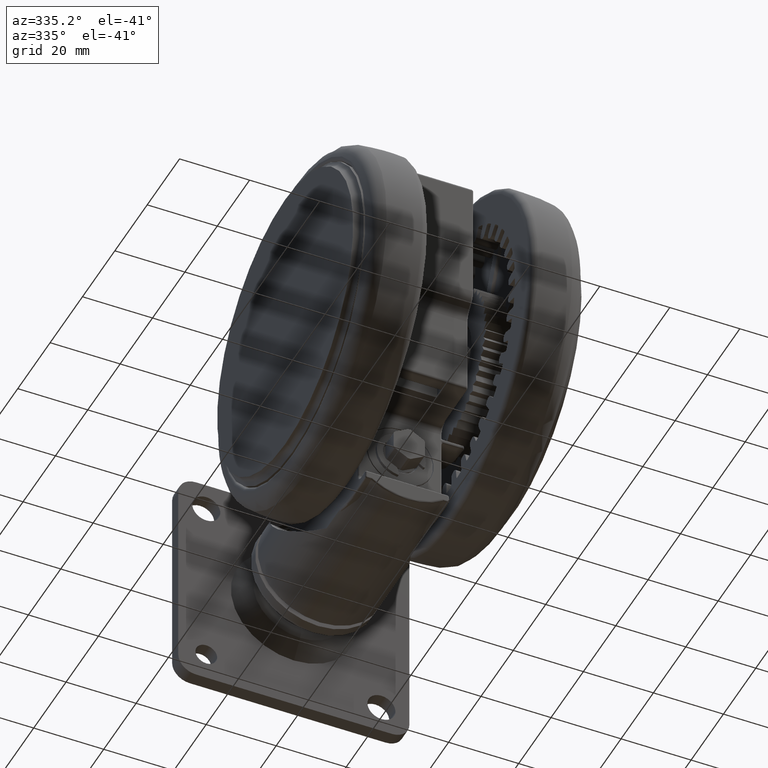
[diagram: clean part render]
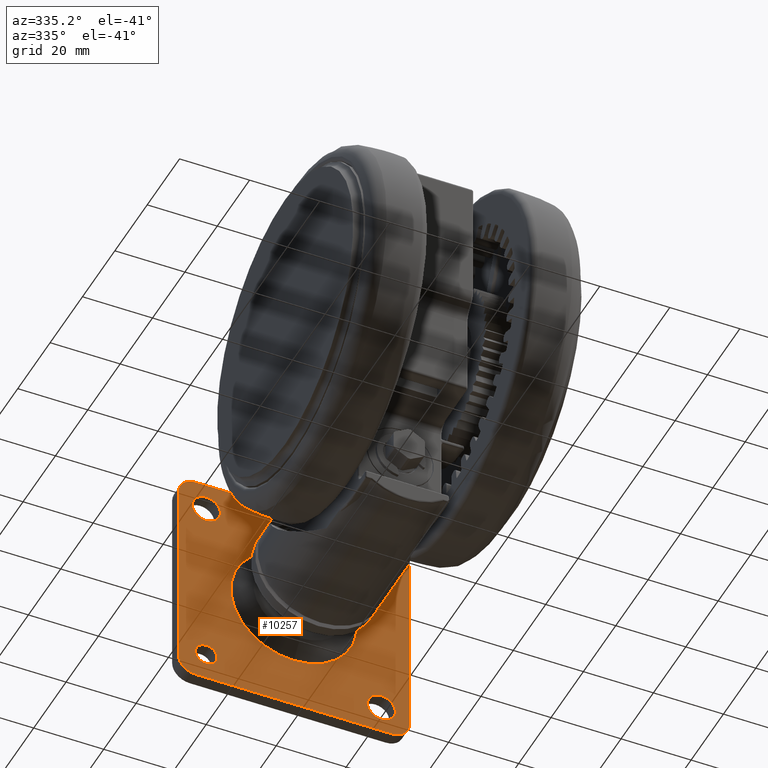
[diagram: same view with one face highlighted and labeled with its STEP entity id]
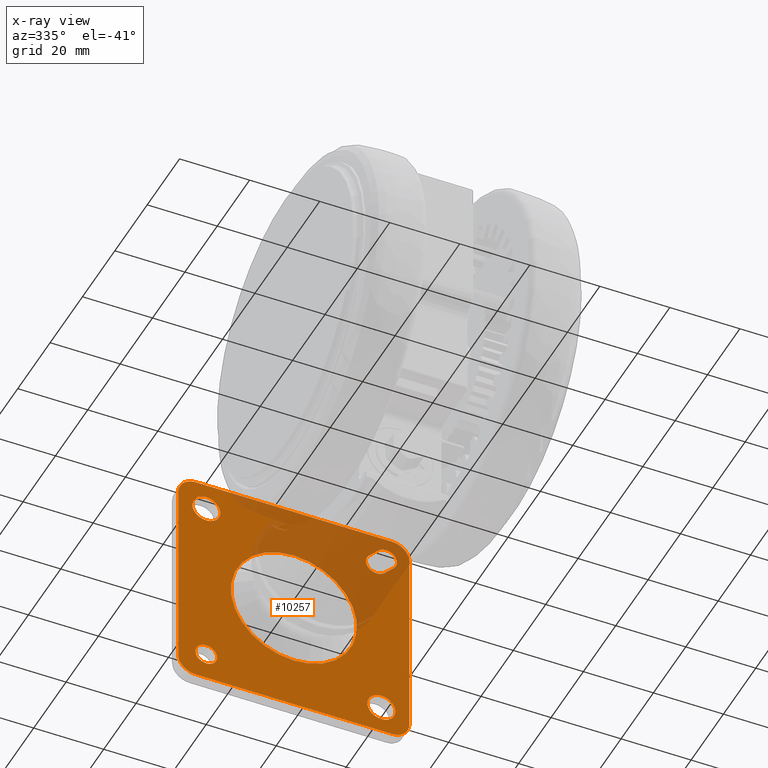
[diagram: x-ray of the same camera — body ghosted, the highlighted face saturated]
A machine part, auxiliary view. The second image highlights one B-rep face of the part: STEP entity #10257.
The next image is the same camera in x-ray: the body ghosted, the highlighted face saturated — about 25% of this face is hidden behind the body in this view.
In plain terms, the highlighted planar face has unit normal (-0, -1, -0).
Its self-contained STEP definition (entity closure, byte-faithful):
#222 = DIRECTION ( 'NONE',  ( -0.02026128721467978000, -0.9997947190500680000, 0.0000000000000000000 ) ) ;
#309 = ORIENTED_EDGE ( 'NONE', *, *, #80909, .T. ) ;
#535 = DIRECTION ( 'NONE',  ( -0.01432689358506911300, -0.7069616256348025800, 0.7071067811865470200 ) ) ;
#673 = VECTOR ( 'NONE', #36134, 1000.000000000000000 ) ;
#681 = CARTESIAN_POINT ( 'NONE',  ( -64.11252849286002200, 54.31015603605093400, 0.4000000000000877900 ) ) ;
#732 = AXIS2_PLACEMENT_3D ( 'NONE', #19027, #63832, #25445 ) ;
#961 = ORIENTED_EDGE ( 'NONE', *, *, #80064, .F. ) ;
#1782 = CARTESIAN_POINT ( 'NONE',  ( -64.98376384309135300, 11.31898311689525200, -57.60000000000275800 ) ) ;
#2260 = CARTESIAN_POINT ( 'NONE',  ( -64.11252849286002200, 54.31015603605107600, -32.59999999999991600 ) ) ;
#2673 = LINE ( 'NONE', #10027, #673 ) ;
#2770 = CARTESIAN_POINT ( 'NONE',  ( -65.04454770473533600, 8.319598959747896300, -4.599999999999913500 ) ) ;
#3116 = VECTOR ( 'NONE', #21427, 1000.000000000000000 ) ;
#3139 = VERTEX_POINT ( 'NONE', #38692 ) ;
#3860 = CARTESIAN_POINT ( 'NONE',  ( -64.47723166272427900, 36.31385109314970800, -32.59999999999991600 ) ) ;
#5254 = VECTOR ( 'NONE', #31082, 1000.000000000000000 ) ;
#5276 = FACE_OUTER_BOUND ( 'NONE', #9302, .T. ) ;
#6168 = CARTESIAN_POINT ( 'NONE',  ( -65.06480899195005900, 7.319804240694993200, -57.60000000000275800 ) ) ;
#6242 = ORIENTED_EDGE ( 'NONE', *, *, #54142, .T. ) ;
#6300 = DIRECTION ( 'NONE',  ( 0.9997947190500680000, -0.02026128721468082100, -3.697785493223492800E-032 ) ) ;
#6346 = ORIENTED_EDGE ( 'NONE', *, *, #70639, .F. ) ;
#6613 = VERTEX_POINT ( 'NONE', #52823 ) ;
#6671 = VERTEX_POINT ( 'NONE', #66563 ) ;
#7285 = FACE_BOUND ( 'NONE', #73672, .T. ) ;
#8160 = DIRECTION ( 'NONE',  ( -0.02026128721467977700, -0.9997947190500680000, 0.0000000000000000000 ) ) ;
#8329 = LINE ( 'NONE', #57947, #25410 ) ;
#8367 = EDGE_CURVE ( 'NONE', #42790, #53618, #24888, .T. ) ;
#8728 = CARTESIAN_POINT ( 'NONE',  ( -63.90991562071321400, 64.30810322655169400, -65.59999999999990900 ) ) ;
#9161 = DIRECTION ( 'NONE',  ( -0.02026128721468178900, -0.9997947190500680000, 0.0000000000000000000 ) ) ;
#9250 = CARTESIAN_POINT ( 'NONE',  ( -63.88965433349847000, 65.30789794560460800, -7.599999999997065100 ) ) ;
#9301 = FACE_BOUND ( 'NONE', #21030, .T. ) ;
#9302 = EDGE_LOOP ( 'NONE', ( #11797, #82635, #17472, #309, #75403, #59909, #76125, #6242 ) ) ;
#10008 = EDGE_CURVE ( 'NONE', #38377, #71191, #8329, .T. ) ;
#10027 = CARTESIAN_POINT ( 'NONE',  ( -64.52164503283798100, 34.12227005368193000, -34.79203102167823400 ) ) ;
#10257 = ADVANCED_FACE ( 'NONE', ( #7285, #9301, #39409, #75495, #22374, #5276 ), #67165, .T. ) ;
#10277 = DIRECTION ( 'NONE',  ( -0.02026128721468086300, -0.9997947190500678900, 0.0000000000000000000 ) ) ;
#11060 = EDGE_CURVE ( 'NONE', #37569, #6613, #17235, .T. ) ;
#11797 = ORIENTED_EDGE ( 'NONE', *, *, #13314, .F. ) ;
#12209 = VERTEX_POINT ( 'NONE', #58854 ) ;
#13307 = EDGE_LOOP ( 'NONE', ( #62472, #31914 ) ) ;
#13314 = EDGE_CURVE ( 'NONE', #75692, #79174, #35907, .T. ) ;
#13449 = AXIS2_PLACEMENT_3D ( 'NONE', #15868, #28785, #73583 ) ;
#13607 = DIRECTION ( 'NONE',  ( 0.9997947190500680000, -0.02026128721468082100, -3.697785493223492800E-032 ) ) ;
#13999 = EDGE_LOOP ( 'NONE', ( #52148, #75784, #44137, #58036, #59355 ) ) ;
#14543 = CARTESIAN_POINT ( 'NONE',  ( -64.05174463121591100, 57.30954019320410000, -7.599999999997064200 ) ) ;
#14693 = CARTESIAN_POINT ( 'NONE',  ( -63.97069948235719000, 61.30871906940435400, -57.60000000000275800 ) ) ;
#14706 = EDGE_CURVE ( 'NONE', #75692, #81235, #80899, .T. ) ;
#14960 = CARTESIAN_POINT ( 'NONE',  ( -63.80860918463980600, 69.30707682180204200, -50.59999999999990900 ) ) ;
#15041 = VECTOR ( 'NONE', #28799, 1000.000000000000100 ) ;
#15868 = CARTESIAN_POINT ( 'NONE',  ( -64.47723166272427900, 36.31385109314980000, -32.59999999999991600 ) ) ;
#17235 = CIRCLE ( 'NONE', #38760, 3.999999999999986200 ) ;
#17472 = ORIENTED_EDGE ( 'NONE', *, *, #77641, .F. ) ;
#17942 = CARTESIAN_POINT ( 'NONE',  ( -63.90991562071321400, 64.30810322655169400, 0.4000000000000877900 ) ) ;
#18474 = EDGE_CURVE ( 'NONE', #56395, #12209, #22188, .T. ) ;
#18688 = CARTESIAN_POINT ( 'NONE',  ( -63.97069948235719000, 61.30871906940435400, -57.60000000000275800 ) ) ;
#19027 = CARTESIAN_POINT ( 'NONE',  ( -63.90991562071321400, 64.30810322655169400, -60.59999999999990900 ) ) ;
#19315 = CIRCLE ( 'NONE', #48315, 3.099999999999987200 ) ;
#20081 = CARTESIAN_POINT ( 'NONE',  ( -65.01098494090292900, 9.975756028191714400, -6.256497115745711200 ) ) ;
#20264 = CIRCLE ( 'NONE', #62092, 3.099999999999988500 ) ;
#20767 = CARTESIAN_POINT ( 'NONE',  ( -65.14585414080873700, 3.320625364497557600, -4.599999999999913500 ) ) ;
#21030 = EDGE_LOOP ( 'NONE', ( #25559, #6346 ) ) ;
#21160 = DIRECTION ( 'NONE',  ( -0.02026128721468034900, -0.9997947190500678900, 0.0000000000000000000 ) ) ;
#21427 = DIRECTION ( 'NONE',  ( 2.756684751750239200E-018, 1.360288133563756000E-016, -1.000000000000000000 ) ) ;
#22188 = LINE ( 'NONE', #14960, #3116 ) ;
#22191 = EDGE_CURVE ( 'NONE', #6671, #39511, #42594, .T. ) ;
#22341 = CARTESIAN_POINT ( 'NONE',  ( -65.14585414080873700, 3.320625364497557600, -65.59999999999990900 ) ) ;
#22352 = LINE ( 'NONE', #69440, #5254 ) ;
#22374 = FACE_BOUND ( 'NONE', #74722, .T. ) ;
#23949 = AXIS2_PLACEMENT_3D ( 'NONE', #1782, #46580, #8160 ) ;
#24857 = DIRECTION ( 'NONE',  ( 0.9997947190500680000, -0.02026128721468082100, -3.697785493223492800E-032 ) ) ;
#24888 = CIRCLE ( 'NONE', #64916, 3.099999999999988500 ) ;
#25113 = DIRECTION ( 'NONE',  ( -0.02026128721468034900, -0.9997947190500678900, 0.0000000000000000000 ) ) ;
#25410 = VECTOR ( 'NONE', #535, 1000.000000000000100 ) ;
#25445 = DIRECTION ( 'NONE',  ( -0.02026128721468178900, -0.9997947190500677800, 0.0000000000000000000 ) ) ;
#25559 = ORIENTED_EDGE ( 'NONE', *, *, #11060, .F. ) ;
#25887 = CARTESIAN_POINT ( 'NONE',  ( -63.90991562071321400, 64.30810322655169400, -4.599999999999913500 ) ) ;
#26295 = CIRCLE ( 'NONE', #76464, 18.00000000000000000 ) ;
#26521 = DIRECTION ( 'NONE',  ( -0.02026128721468025200, -0.9997947190500680000, 0.0000000000000000000 ) ) ;
#27752 = AXIS2_PLACEMENT_3D ( 'NONE', #51985, #13607, #58459 ) ;
#28356 = CARTESIAN_POINT ( 'NONE',  ( -65.04454770473533600, 8.319598959747896300, -60.59999999999990900 ) ) ;
#28785 = DIRECTION ( 'NONE',  ( 0.9997947190500678900, -0.02026128721468081800, -3.697785493223492300E-032 ) ) ;
#28799 = DIRECTION ( 'NONE',  ( -0.02026128721468081800, -0.9997947190500678900, 0.0000000000000000000 ) ) ;
#28948 = EDGE_CURVE ( 'NONE', #3139, #33322, #72073, .T. ) ;
#29946 = AXIS2_PLACEMENT_3D ( 'NONE', #14693, #59550, #21160 ) ;
#30144 = VERTEX_POINT ( 'NONE', #9250 ) ;
#31082 = DIRECTION ( 'NONE',  ( 7.070322314059470400E-035, -1.432832444260775400E-036, 1.000000000000000000 ) ) ;
#31143 = CIRCLE ( 'NONE', #23949, 3.999999999999986200 ) ;
#31914 = ORIENTED_EDGE ( 'NONE', *, *, #40563, .F. ) ;
#32346 = DIRECTION ( 'NONE',  ( -0.02026128721468178900, -0.9997947190500677800, 0.0000000000000000000 ) ) ;
#32876 = CARTESIAN_POINT ( 'NONE',  ( -65.00095611539337900, 10.47062916613614500, -11.13553390593286700 ) ) ;
#33322 = VERTEX_POINT ( 'NONE', #2260 ) ;
#34274 = CARTESIAN_POINT ( 'NONE',  ( -63.80860918463980600, 69.30707682180204200, -4.599999999999913500 ) ) ;
#34826 = DIRECTION ( 'NONE',  ( -0.02026128721468178900, -0.9997947190500680000, 0.0000000000000000000 ) ) ;
#35165 = VERTEX_POINT ( 'NONE', #35642 ) ;
#35642 = CARTESIAN_POINT ( 'NONE',  ( -65.05539831101664600, 7.784174988723878000, -8.448528137424013100 ) ) ;
#35907 = LINE ( 'NONE', #681, #50904 ) ;
#36134 = DIRECTION ( 'NONE',  ( 0.01432689358506922400, 0.7069616256348081300, -0.7071067811865415800 ) ) ;
#37260 = CARTESIAN_POINT ( 'NONE',  ( -64.47723166272427900, 36.31385109314970800, -32.59999999999991600 ) ) ;
#37569 = VERTEX_POINT ( 'NONE', #6168 ) ;
#37579 = DIRECTION ( 'NONE',  ( 0.9997947190500680000, -0.02026128721468082100, -3.697785493223492800E-032 ) ) ;
#38363 = VERTEX_POINT ( 'NONE', #40549 ) ;
#38377 = VERTEX_POINT ( 'NONE', #72767 ) ;
#38544 = ORIENTED_EDGE ( 'NONE', *, *, #47396, .F. ) ;
#38582 = DIRECTION ( 'NONE',  ( 0.9997947190500680000, -0.02026128721468082100, -3.697785493223492800E-032 ) ) ;
#38692 = CARTESIAN_POINT ( 'NONE',  ( -64.84193483258853500, 18.31754615024863900, -32.59999999999991600 ) ) ;
#38760 = AXIS2_PLACEMENT_3D ( 'NONE', #75955, #37579, #82357 ) ;
#39409 = FACE_BOUND ( 'NONE', #13307, .T. ) ;
#39441 = CARTESIAN_POINT ( 'NONE',  ( -64.89373275491415400, 15.76157383465918300, -8.943502884254565200 ) ) ;
#39511 = VERTEX_POINT ( 'NONE', #54631 ) ;
#40205 = CARTESIAN_POINT ( 'NONE',  ( -65.04454770473533600, 8.319598959747896300, -65.59999999999990900 ) ) ;
#40549 = CARTESIAN_POINT ( 'NONE',  ( -65.14585414080873700, 3.320625364497557600, -60.59999999999990200 ) ) ;
#40563 = EDGE_CURVE ( 'NONE', #39511, #6671, #19315, .T. ) ;
#40734 = VERTEX_POINT ( 'NONE', #40205 ) ;
#42007 = EDGE_CURVE ( 'NONE', #70708, #40734, #49115, .T. ) ;
#42348 = CIRCLE ( 'NONE', #75729, 3.100000000000002300 ) ;
#42594 = CIRCLE ( 'NONE', #29946, 3.099999999999987200 ) ;
#42790 = VERTEX_POINT ( 'NONE', #32876 ) ;
#43694 = DIRECTION ( 'NONE',  ( -0.02026128721468086300, -0.9997947190500678900, 0.0000000000000000000 ) ) ;
#44137 = ORIENTED_EDGE ( 'NONE', *, *, #45730, .F. ) ;
#44708 = CARTESIAN_POINT ( 'NONE',  ( -64.95654274527966300, 12.66221020560398500, -8.943502884254565200 ) ) ;
#45095 = AXIS2_PLACEMENT_3D ( 'NONE', #76970, #38582, #222 ) ;
#45445 = DIRECTION ( 'NONE',  ( 0.02026128721468081800, 0.9997947190500678900, 0.0000000000000000000 ) ) ;
#45730 = EDGE_CURVE ( 'NONE', #53618, #38377, #20264, .T. ) ;
#46580 = DIRECTION ( 'NONE',  ( 0.9997947190500680000, -0.02026128721468082100, -3.697785493223492800E-032 ) ) ;
#47396 = EDGE_CURVE ( 'NONE', #30144, #59628, #51033, .T. ) ;
#47561 = DIRECTION ( 'NONE',  ( 0.9997947190500680000, -0.02026128721468082100, -3.697785493223492800E-032 ) ) ;
#48315 = AXIS2_PLACEMENT_3D ( 'NONE', #18688, #63475, #25113 ) ;
#48696 = DIRECTION ( 'NONE',  ( 0.9997947190500680000, -0.02026128721468082100, -3.697785493223492800E-032 ) ) ;
#49115 = LINE ( 'NONE', #22341, #15041 ) ;
#50904 = VECTOR ( 'NONE', #45445, 1000.000000000000100 ) ;
#51033 = CIRCLE ( 'NONE', #27752, 3.999999999999985300 ) ;
#51164 = DIRECTION ( 'NONE',  ( -0.02026128721468034200, -0.9997947190500680000, 0.0000000000000000000 ) ) ;
#51985 = CARTESIAN_POINT ( 'NONE',  ( -63.97069948235719000, 61.30871906940435400, -7.599999999997064200 ) ) ;
#52148 = ORIENTED_EDGE ( 'NONE', *, *, #66477, .F. ) ;
#52823 = CARTESIAN_POINT ( 'NONE',  ( -64.90271869423263200, 15.31816199309551000, -57.60000000000275800 ) ) ;
#52841 = CIRCLE ( 'NONE', #732, 5.000000000000000000 ) ;
#53618 = VERTEX_POINT ( 'NONE', #39441 ) ;
#53851 = CIRCLE ( 'NONE', #57502, 5.000000000000000000 ) ;
#54142 = EDGE_CURVE ( 'NONE', #56395, #79174, #72100, .T. ) ;
#54631 = CARTESIAN_POINT ( 'NONE',  ( -63.90788949199168200, 64.40808269845955200, -57.60000000000275800 ) ) ;
#56395 = VERTEX_POINT ( 'NONE', #34274 ) ;
#57502 = AXIS2_PLACEMENT_3D ( 'NONE', #28356, #73185, #34826 ) ;
#57947 = CARTESIAN_POINT ( 'NONE',  ( -64.43281829261056300, 38.50543213261747900, -30.40796897832182200 ) ) ;
#58036 = ORIENTED_EDGE ( 'NONE', *, *, #8367, .F. ) ;
#58459 = DIRECTION ( 'NONE',  ( -0.02026128721467978000, -0.9997947190500680000, 0.0000000000000000000 ) ) ;
#58548 = CARTESIAN_POINT ( 'NONE',  ( -64.96657157078922800, 12.16733706765960800, -4.064466094067364000 ) ) ;
#58854 = CARTESIAN_POINT ( 'NONE',  ( -63.80860918463980600, 69.30707682180204200, -60.59999999999990900 ) ) ;
#59355 = ORIENTED_EDGE ( 'NONE', *, *, #81407, .F. ) ;
#59550 = DIRECTION ( 'NONE',  ( 0.9997947190500680000, -0.02026128721468082100, -3.697785493223492800E-032 ) ) ;
#59628 = VERTEX_POINT ( 'NONE', #14543 ) ;
#59909 = ORIENTED_EDGE ( 'NONE', *, *, #73413, .T. ) ;
#62092 = AXIS2_PLACEMENT_3D ( 'NONE', #44708, #6300, #51164 ) ;
#62472 = ORIENTED_EDGE ( 'NONE', *, *, #22191, .F. ) ;
#63218 = CARTESIAN_POINT ( 'NONE',  ( -64.95654274527966300, 12.66221020560398500, -8.943502884254565200 ) ) ;
#63475 = DIRECTION ( 'NONE',  ( 0.9997947190500680000, -0.02026128721468082100, -3.697785493223492800E-032 ) ) ;
#63832 = DIRECTION ( 'NONE',  ( 0.9997947190500680000, -0.02026128721468082100, -3.697785493223492800E-032 ) ) ;
#64903 = DIRECTION ( 'NONE',  ( 0.9997947190500680000, -0.02026128721468082100, -3.697785493223492800E-032 ) ) ;
#64916 = AXIS2_PLACEMENT_3D ( 'NONE', #63218, #24857, #69687 ) ;
#66477 = EDGE_CURVE ( 'NONE', #71191, #35165, #42348, .T. ) ;
#66563 = CARTESIAN_POINT ( 'NONE',  ( -64.03350947272269900, 58.20935544034915700, -57.60000000000275800 ) ) ;
#67165 = PLANE ( 'NONE',  #13449 ) ;
#69440 = CARTESIAN_POINT ( 'NONE',  ( -65.14585414080873700, 3.320625364497557600, -14.65548799280361600 ) ) ;
#69445 = EDGE_CURVE ( 'NONE', #33322, #3139, #26295, .T. ) ;
#69687 = DIRECTION ( 'NONE',  ( -0.02026128721468034200, -0.9997947190500680000, 0.0000000000000000000 ) ) ;
#70639 = EDGE_CURVE ( 'NONE', #6613, #37569, #31143, .T. ) ;
#70708 = VERTEX_POINT ( 'NONE', #8728 ) ;
#70741 = DIRECTION ( 'NONE',  ( 0.9997947190500680000, -0.02026128721468082100, -3.697785493223492800E-032 ) ) ;
#71105 = ORIENTED_EDGE ( 'NONE', *, *, #69445, .F. ) ;
#71191 = VERTEX_POINT ( 'NONE', #58548 ) ;
#72073 = CIRCLE ( 'NONE', #82403, 18.00000000000000000 ) ;
#72100 = CIRCLE ( 'NONE', #75977, 5.000000000000000000 ) ;
#72767 = CARTESIAN_POINT ( 'NONE',  ( -64.91212937516594600, 14.85379124507186400, -6.751471862576251800 ) ) ;
#73185 = DIRECTION ( 'NONE',  ( 0.9997947190500680000, -0.02026128721468082100, -3.697785493223492800E-032 ) ) ;
#73413 = EDGE_CURVE ( 'NONE', #70708, #12209, #52841, .T. ) ;
#73583 = DIRECTION ( 'NONE',  ( -0.02026128721468081800, -0.9997947190500678900, 0.0000000000000000000 ) ) ;
#73661 = ORIENTED_EDGE ( 'NONE', *, *, #28948, .F. ) ;
#73672 = EDGE_LOOP ( 'NONE', ( #961, #38544 ) ) ;
#74006 = CARTESIAN_POINT ( 'NONE',  ( -65.04454770473533600, 8.319598959747899900, 0.4000000000000877900 ) ) ;
#74722 = EDGE_LOOP ( 'NONE', ( #71105, #73661 ) ) ;
#75403 = ORIENTED_EDGE ( 'NONE', *, *, #42007, .F. ) ;
#75495 = FACE_BOUND ( 'NONE', #13999, .T. ) ;
#75692 = VERTEX_POINT ( 'NONE', #74006 ) ;
#75729 = AXIS2_PLACEMENT_3D ( 'NONE', #20081, #64903, #26521 ) ;
#75784 = ORIENTED_EDGE ( 'NONE', *, *, #10008, .F. ) ;
#75955 = CARTESIAN_POINT ( 'NONE',  ( -64.98376384309135300, 11.31898311689525200, -57.60000000000275800 ) ) ;
#75977 = AXIS2_PLACEMENT_3D ( 'NONE', #25887, #70741, #32346 ) ;
#76125 = ORIENTED_EDGE ( 'NONE', *, *, #18474, .F. ) ;
#76464 = AXIS2_PLACEMENT_3D ( 'NONE', #37260, #82045, #43694 ) ;
#76970 = CARTESIAN_POINT ( 'NONE',  ( -63.97069948235719000, 61.30871906940435400, -7.599999999997064200 ) ) ;
#77641 = EDGE_CURVE ( 'NONE', #38363, #81235, #22352, .T. ) ;
#79174 = VERTEX_POINT ( 'NONE', #17942 ) ;
#80064 = EDGE_CURVE ( 'NONE', #59628, #30144, #82026, .T. ) ;
#80376 = AXIS2_PLACEMENT_3D ( 'NONE', #2770, #47561, #9161 ) ;
#80899 = CIRCLE ( 'NONE', #80376, 5.000000000000000000 ) ;
#80909 = EDGE_CURVE ( 'NONE', #38363, #40734, #53851, .T. ) ;
#81235 = VERTEX_POINT ( 'NONE', #20767 ) ;
#81407 = EDGE_CURVE ( 'NONE', #35165, #42790, #2673, .T. ) ;
#82026 = CIRCLE ( 'NONE', #45095, 3.999999999999985300 ) ;
#82045 = DIRECTION ( 'NONE',  ( 0.9997947190500680000, -0.02026128721468082100, -3.697785493223492800E-032 ) ) ;
#82357 = DIRECTION ( 'NONE',  ( -0.02026128721467977700, -0.9997947190500680000, 0.0000000000000000000 ) ) ;
#82403 = AXIS2_PLACEMENT_3D ( 'NONE', #3860, #48696, #10277 ) ;
#82635 = ORIENTED_EDGE ( 'NONE', *, *, #14706, .T. ) ;